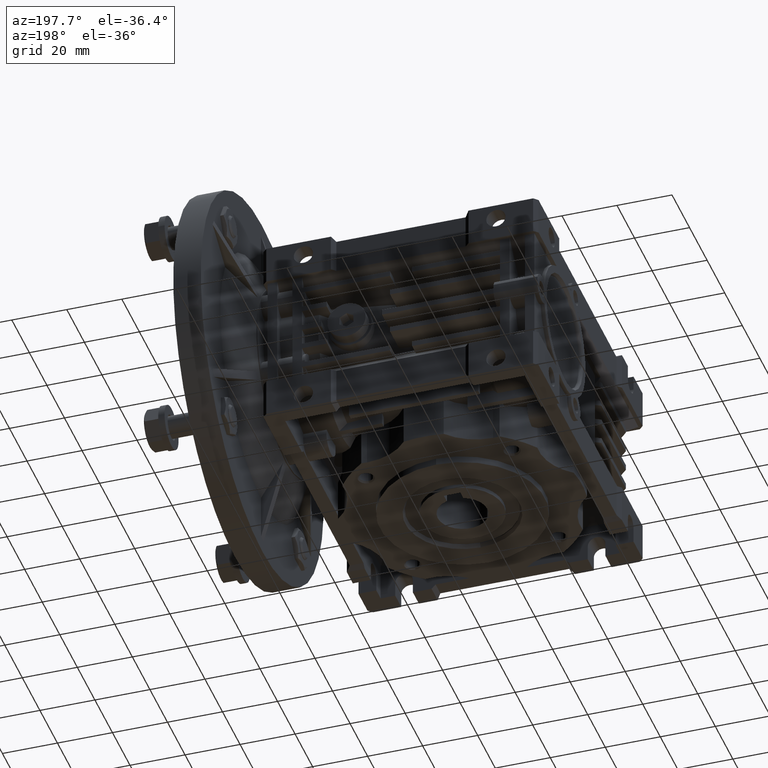
[diagram: clean part render]
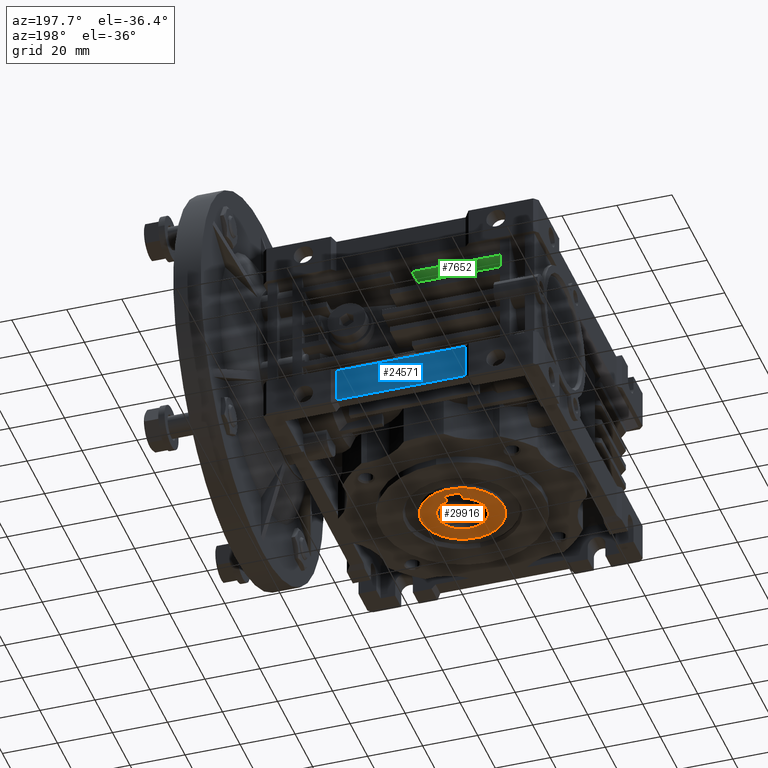
[diagram: same view with three faces highlighted in distinct colors, each labeled with its STEP entity id]
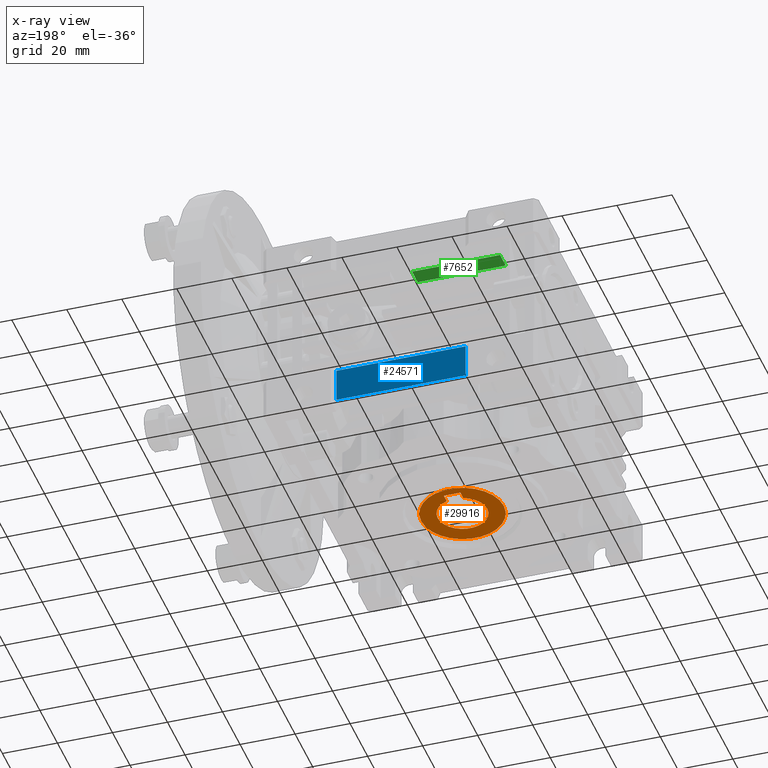
[diagram: x-ray of the same camera — body ghosted, the three highlighted faces saturated]
A machine part, auxiliary view with three faces highlighted in distinct colors.
The next image is the same camera in x-ray (body ghosted, the three faces saturated) — at least one of them is partly hidden behind the body in this view.
Their STEP definitions:

[orange] entity #29916 — the highlighted planar face has unit normal (0, 0, 1).
#1068 = EDGE_CURVE ( 'NONE', #3064, #19414, #10964, .T. ) ;
#1292 = CARTESIAN_POINT ( 'NONE',  ( 15.00000000000000000, 1.836970198721029589E-15, -39.00000000000000000 ) ) ;
#2348 = ORIENTED_EDGE ( 'NONE', *, *, #26232, .F. ) ;
#3064 = VERTEX_POINT ( 'NONE', #21442 ) ;
#3066 = DIRECTION ( 'NONE',  ( 0.000000000000000000, 0.000000000000000000, 1.000000000000000000 ) ) ;
#3363 = VERTEX_POINT ( 'NONE', #5479 ) ;
#3628 = DIRECTION ( 'NONE',  ( 0.000000000000000000, 0.000000000000000000, -1.000000000000000000 ) ) ;
#4320 = VECTOR ( 'NONE', #18289, 1000.000000000000000 ) ;
#4439 = FACE_BOUND ( 'NONE', #23490, .T. ) ;
#4551 = AXIS2_PLACEMENT_3D ( 'NONE', #32316, #14185, #24371 ) ;
#4774 = DIRECTION ( 'NONE',  ( 0.000000000000000000, 0.000000000000000000, 1.000000000000000000 ) ) ;
#5479 = CARTESIAN_POINT ( 'NONE',  ( -15.00000000000000000, 0.000000000000000000, -39.00000000000000000 ) ) ;
#5592 = EDGE_CURVE ( 'NONE', #27540, #3363, #28269, .T. ) ;
#5831 = CARTESIAN_POINT ( 'NONE',  ( -3.000000000000000000, 8.485281374238569541, -39.00000000000000000 ) ) ;
#5942 = VECTOR ( 'NONE', #20376, 1000.000000000000000 ) ;
#6602 = CARTESIAN_POINT ( 'NONE',  ( -9.000000000000000000, 0.000000000000000000, -39.00000000000000000 ) ) ;
#6669 = CARTESIAN_POINT ( 'NONE',  ( 3.000000000000000000, 8.485281374238569541, -39.00000000000000000 ) ) ;
#8140 = ORIENTED_EDGE ( 'NONE', *, *, #17219, .F. ) ;
#8325 = VERTEX_POINT ( 'NONE', #6669 ) ;
#9194 = CARTESIAN_POINT ( 'NONE',  ( 9.000000000000000000, 1.102182119232617714E-15, -39.00000000000000000 ) ) ;
#9421 = DIRECTION ( 'NONE',  ( 0.000000000000000000, 0.000000000000000000, -1.000000000000000000 ) ) ;
#9482 = VECTOR ( 'NONE', #23698, 1000.000000000000000 ) ;
#9547 = AXIS2_PLACEMENT_3D ( 'NONE', #27226, #14120, #19991 ) ;
#10572 = VERTEX_POINT ( 'NONE', #5831 ) ;
#10576 = LINE ( 'NONE', #10742, #9482 ) ;
#10742 = CARTESIAN_POINT ( 'NONE',  ( 3.000000000000000000, 0.000000000000000000, -39.00000000000000000 ) ) ;
#10964 = LINE ( 'NONE', #21498, #4320 ) ;
#11016 = DIRECTION ( 'NONE',  ( -1.000000000000000000, 0.000000000000000000, 0.000000000000000000 ) ) ;
#11169 = ORIENTED_EDGE ( 'NONE', *, *, #1068, .F. ) ;
#11277 = CIRCLE ( 'NONE', #31679, 15.00000000000000000 ) ;
#11293 = EDGE_CURVE ( 'NONE', #8325, #21566, #16242, .T. ) ;
#14120 = DIRECTION ( 'NONE',  ( 0.000000000000000000, 0.000000000000000000, 1.000000000000000000 ) ) ;
#14185 = DIRECTION ( 'NONE',  ( 0.000000000000000000, 0.000000000000000000, -1.000000000000000000 ) ) ;
#14953 = DIRECTION ( 'NONE',  ( -1.000000000000000000, 0.000000000000000000, 0.000000000000000000 ) ) ;
#15222 = ORIENTED_EDGE ( 'NONE', *, *, #28343, .F. ) ;
#15305 = DIRECTION ( 'NONE',  ( 1.000000000000000000, 0.000000000000000000, 0.000000000000000000 ) ) ;
#15341 = ORIENTED_EDGE ( 'NONE', *, *, #22258, .F. ) ;
#15474 = CARTESIAN_POINT ( 'NONE',  ( 0.000000000000000000, 0.000000000000000000, -39.00000000000000000 ) ) ;
#16242 = CIRCLE ( 'NONE', #32244, 9.000000000000000000 ) ;
#16557 = AXIS2_PLACEMENT_3D ( 'NONE', #32639, #3628, #32114 ) ;
#16649 = CIRCLE ( 'NONE', #4551, 9.000000000000000000 ) ;
#17219 = EDGE_CURVE ( 'NONE', #10572, #3064, #28636, .T. ) ;
#18289 = DIRECTION ( 'NONE',  ( 1.000000000000000000, 0.000000000000000000, 0.000000000000000000 ) ) ;
#19414 = VERTEX_POINT ( 'NONE', #20071 ) ;
#19991 = DIRECTION ( 'NONE',  ( -1.000000000000000000, 0.000000000000000000, 0.000000000000000000 ) ) ;
#20071 = CARTESIAN_POINT ( 'NONE',  ( 3.000000000000000000, 11.79999999999999893, -39.00000000000000000 ) ) ;
#20286 = AXIS2_PLACEMENT_3D ( 'NONE', #15474, #4774, #15305 ) ;
#20376 = DIRECTION ( 'NONE',  ( 0.000000000000000000, 1.000000000000000000, 0.000000000000000000 ) ) ;
#20710 = CARTESIAN_POINT ( 'NONE',  ( -3.000000000000000000, 0.000000000000000000, -39.00000000000000000 ) ) ;
#21442 = CARTESIAN_POINT ( 'NONE',  ( -3.000000000000000000, 11.79999999999999893, -39.00000000000000000 ) ) ;
#21498 = CARTESIAN_POINT ( 'NONE',  ( 0.000000000000000000, 11.79999999999999893, -39.00000000000000000 ) ) ;
#21566 = VERTEX_POINT ( 'NONE', #9194 ) ;
#22258 = EDGE_CURVE ( 'NONE', #3363, #27540, #11277, .T. ) ;
#22500 = EDGE_LOOP ( 'NONE', ( #15341, #31033 ) ) ;
#22745 = FACE_OUTER_BOUND ( 'NONE', #22500, .T. ) ;
#23490 = EDGE_LOOP ( 'NONE', ( #33351, #28864, #11169, #8140, #2348, #15222 ) ) ;
#23698 = DIRECTION ( 'NONE',  ( 0.000000000000000000, -1.000000000000000000, 0.000000000000000000 ) ) ;
#24371 = DIRECTION ( 'NONE',  ( -1.000000000000000000, 0.000000000000000000, 0.000000000000000000 ) ) ;
#26149 = EDGE_CURVE ( 'NONE', #19414, #8325, #10576, .T. ) ;
#26232 = EDGE_CURVE ( 'NONE', #30575, #10572, #16649, .T. ) ;
#26720 = CARTESIAN_POINT ( 'NONE',  ( 0.000000000000000000, 0.000000000000000000, -39.00000000000000000 ) ) ;
#27226 = CARTESIAN_POINT ( 'NONE',  ( 0.000000000000000000, 0.000000000000000000, -39.00000000000000000 ) ) ;
#27540 = VERTEX_POINT ( 'NONE', #1292 ) ;
#28269 = CIRCLE ( 'NONE', #9547, 15.00000000000000000 ) ;
#28343 = EDGE_CURVE ( 'NONE', #21566, #30575, #30341, .T. ) ;
#28577 = PLANE ( 'NONE',  #20286 ) ;
#28636 = LINE ( 'NONE', #20710, #5942 ) ;
#28864 = ORIENTED_EDGE ( 'NONE', *, *, #26149, .F. ) ;
#29916 = ADVANCED_FACE ( 'NONE', ( #4439, #22745 ), #28577, .F. ) ;
#30341 = CIRCLE ( 'NONE', #16557, 9.000000000000000000 ) ;
#30575 = VERTEX_POINT ( 'NONE', #6602 ) ;
#31033 = ORIENTED_EDGE ( 'NONE', *, *, #5592, .F. ) ;
#31679 = AXIS2_PLACEMENT_3D ( 'NONE', #26720, #3066, #11016 ) ;
#32114 = DIRECTION ( 'NONE',  ( -1.000000000000000000, 0.000000000000000000, 0.000000000000000000 ) ) ;
#32244 = AXIS2_PLACEMENT_3D ( 'NONE', #33072, #9421, #14953 ) ;
#32316 = CARTESIAN_POINT ( 'NONE',  ( 0.000000000000000000, 0.000000000000000000, -39.00000000000000000 ) ) ;
#32639 = CARTESIAN_POINT ( 'NONE',  ( 0.000000000000000000, 0.000000000000000000, -39.00000000000000000 ) ) ;
#33072 = CARTESIAN_POINT ( 'NONE',  ( 0.000000000000000000, 0.000000000000000000, -39.00000000000000000 ) ) ;
#33351 = ORIENTED_EDGE ( 'NONE', *, *, #11293, .F. ) ;

[blue] entity #24571 — the highlighted planar face has unit normal (-0, 1, 0).
#148 = ORIENTED_EDGE ( 'NONE', *, *, #1541, .T. ) ;
#1541 = EDGE_CURVE ( 'NONE', #9771, #25775, #28885, .T. ) ;
#3103 = CARTESIAN_POINT ( 'NONE',  ( 23.50000000000000000, 70.00000000000000000, -34.00000000000000000 ) ) ;
#3798 = CARTESIAN_POINT ( 'NONE',  ( 23.50000000000000000, 70.00000000000000000, 0.000000000000000000 ) ) ;
#4902 = CARTESIAN_POINT ( 'NONE',  ( 0.000000000000000000, 70.00000000000000000, 0.000000000000000000 ) ) ;
#5722 = EDGE_LOOP ( 'NONE', ( #17885, #21298, #19086, #148 ) ) ;
#6231 = LINE ( 'NONE', #19175, #12923 ) ;
#6706 = CARTESIAN_POINT ( 'NONE',  ( -23.50000000000000000, 70.00000000000000000, -21.50000000000000000 ) ) ;
#7506 = FACE_OUTER_BOUND ( 'NONE', #5722, .T. ) ;
#9010 = VECTOR ( 'NONE', #19168, 1000.000000000000000 ) ;
#9510 = AXIS2_PLACEMENT_3D ( 'NONE', #4902, #30799, #15616 ) ;
#9771 = VERTEX_POINT ( 'NONE', #21167 ) ;
#9892 = VERTEX_POINT ( 'NONE', #18247 ) ;
#10248 = DIRECTION ( 'NONE',  ( 0.000000000000000000, 0.000000000000000000, 1.000000000000000000 ) ) ;
#12898 = VECTOR ( 'NONE', #13357, 1000.000000000000000 ) ;
#12923 = VECTOR ( 'NONE', #32645, 1000.000000000000000 ) ;
#13357 = DIRECTION ( 'NONE',  ( -1.000000000000000000, 0.000000000000000000, 0.000000000000000000 ) ) ;
#15616 = DIRECTION ( 'NONE',  ( 1.000000000000000000, 0.000000000000000000, 0.000000000000000000 ) ) ;
#16959 = VERTEX_POINT ( 'NONE', #3103 ) ;
#17589 = VECTOR ( 'NONE', #10248, 1000.000000000000000 ) ;
#17885 = ORIENTED_EDGE ( 'NONE', *, *, #21958, .T. ) ;
#18247 = CARTESIAN_POINT ( 'NONE',  ( 23.50000000000000000, 70.00000000000000000, -21.50000000000000000 ) ) ;
#19086 = ORIENTED_EDGE ( 'NONE', *, *, #21465, .T. ) ;
#19168 = DIRECTION ( 'NONE',  ( 0.000000000000000000, 0.000000000000000000, -1.000000000000000000 ) ) ;
#19175 = CARTESIAN_POINT ( 'NONE',  ( -48.50000000000000000, 70.00000000000000000, -21.50000000000000000 ) ) ;
#20811 = EDGE_CURVE ( 'NONE', #9892, #16959, #30190, .T. ) ;
#20960 = PLANE ( 'NONE',  #9510 ) ;
#21167 = CARTESIAN_POINT ( 'NONE',  ( -23.50000000000000000, 70.00000000000000000, -34.00000000000000000 ) ) ;
#21298 = ORIENTED_EDGE ( 'NONE', *, *, #20811, .T. ) ;
#21462 = CARTESIAN_POINT ( 'NONE',  ( 23.50000000000000000, 70.00000000000000000, -34.00000000000000000 ) ) ;
#21465 = EDGE_CURVE ( 'NONE', #16959, #9771, #29386, .T. ) ;
#21958 = EDGE_CURVE ( 'NONE', #25775, #9892, #6231, .T. ) ;
#23880 = CARTESIAN_POINT ( 'NONE',  ( -23.50000000000000000, 70.00000000000000000, -35.50000000000000000 ) ) ;
#24571 = ADVANCED_FACE ( 'NONE', ( #7506 ), #20960, .T. ) ;
#25775 = VERTEX_POINT ( 'NONE', #6706 ) ;
#28885 = LINE ( 'NONE', #23880, #17589 ) ;
#29386 = LINE ( 'NONE', #21462, #12898 ) ;
#30190 = LINE ( 'NONE', #3798, #9010 ) ;
#30799 = DIRECTION ( 'NONE',  ( -0.000000000000000000, 1.000000000000000000, 0.000000000000000000 ) ) ;
#32645 = DIRECTION ( 'NONE',  ( 1.000000000000000000, 0.000000000000000000, 0.000000000000000000 ) ) ;

[green] entity #7652 — the highlighted planar face has unit normal (0, 0, 1).
#83 = CARTESIAN_POINT ( 'NONE',  ( -4.000000000000000000, 50.00000000000000000, 15.00000000000000000 ) ) ;
#2193 = EDGE_CURVE ( 'NONE', #21649, #29356, #27437, .T. ) ;
#4372 = VECTOR ( 'NONE', #29851, 1000.000000000000000 ) ;
#5253 = AXIS2_PLACEMENT_3D ( 'NONE', #17673, #28812, #15079 ) ;
#5701 = VECTOR ( 'NONE', #14387, 1000.000000000000000 ) ;
#6566 = CARTESIAN_POINT ( 'NONE',  ( -36.00000000000000000, 50.00000000000000000, 15.00000000000000000 ) ) ;
#6620 = LINE ( 'NONE', #27485, #5701 ) ;
#7535 = LINE ( 'NONE', #83, #11001 ) ;
#7604 = EDGE_CURVE ( 'NONE', #20616, #31718, #6620, .T. ) ;
#7652 = ADVANCED_FACE ( 'NONE', ( #33203 ), #10522, .F. ) ;
#10522 = PLANE ( 'NONE',  #5253 ) ;
#11001 = VECTOR ( 'NONE', #23245, 1000.000000000000000 ) ;
#11624 = CARTESIAN_POINT ( 'NONE',  ( -4.000000000000000000, 63.50000000000000000, 15.00000000000000000 ) ) ;
#14387 = DIRECTION ( 'NONE',  ( -1.000000000000000000, 0.000000000000000000, 0.000000000000000000 ) ) ;
#15079 = DIRECTION ( 'NONE',  ( 1.000000000000000000, 0.000000000000000000, 0.000000000000000000 ) ) ;
#15897 = CARTESIAN_POINT ( 'NONE',  ( -4.000000000000000000, 70.00000000000000000, 15.00000000000000000 ) ) ;
#16582 = DIRECTION ( 'NONE',  ( 0.000000000000000000, 1.000000000000000000, 0.000000000000000000 ) ) ;
#17673 = CARTESIAN_POINT ( 'NONE',  ( -36.00000000000000000, 50.00000000000000000, 15.00000000000000000 ) ) ;
#18484 = ORIENTED_EDGE ( 'NONE', *, *, #31430, .F. ) ;
#19345 = CARTESIAN_POINT ( 'NONE',  ( -48.50000000000000000, 63.50000000000000000, 15.00000000000000000 ) ) ;
#20616 = VERTEX_POINT ( 'NONE', #15897 ) ;
#21649 = VERTEX_POINT ( 'NONE', #11624 ) ;
#23210 = ORIENTED_EDGE ( 'NONE', *, *, #7604, .F. ) ;
#23245 = DIRECTION ( 'NONE',  ( 0.000000000000000000, 1.000000000000000000, 0.000000000000000000 ) ) ;
#23677 = CARTESIAN_POINT ( 'NONE',  ( -36.00000000000000000, 63.50000000000000000, 15.00000000000000000 ) ) ;
#24021 = EDGE_CURVE ( 'NONE', #29356, #31718, #26912, .T. ) ;
#25104 = CARTESIAN_POINT ( 'NONE',  ( -36.00000000000000000, 70.00000000000000000, 15.00000000000000000 ) ) ;
#26912 = LINE ( 'NONE', #6566, #30947 ) ;
#27437 = LINE ( 'NONE', #19345, #4372 ) ;
#27485 = CARTESIAN_POINT ( 'NONE',  ( 0.000000000000000000, 70.00000000000000000, 15.00000000000000000 ) ) ;
#28812 = DIRECTION ( 'NONE',  ( 0.000000000000000000, 0.000000000000000000, 1.000000000000000000 ) ) ;
#29356 = VERTEX_POINT ( 'NONE', #23677 ) ;
#29359 = ORIENTED_EDGE ( 'NONE', *, *, #24021, .T. ) ;
#29851 = DIRECTION ( 'NONE',  ( -1.000000000000000000, 0.000000000000000000, 0.000000000000000000 ) ) ;
#30391 = EDGE_LOOP ( 'NONE', ( #29359, #23210, #18484, #34020 ) ) ;
#30947 = VECTOR ( 'NONE', #16582, 1000.000000000000000 ) ;
#31430 = EDGE_CURVE ( 'NONE', #21649, #20616, #7535, .T. ) ;
#31718 = VERTEX_POINT ( 'NONE', #25104 ) ;
#33203 = FACE_OUTER_BOUND ( 'NONE', #30391, .T. ) ;
#34020 = ORIENTED_EDGE ( 'NONE', *, *, #2193, .T. ) ;